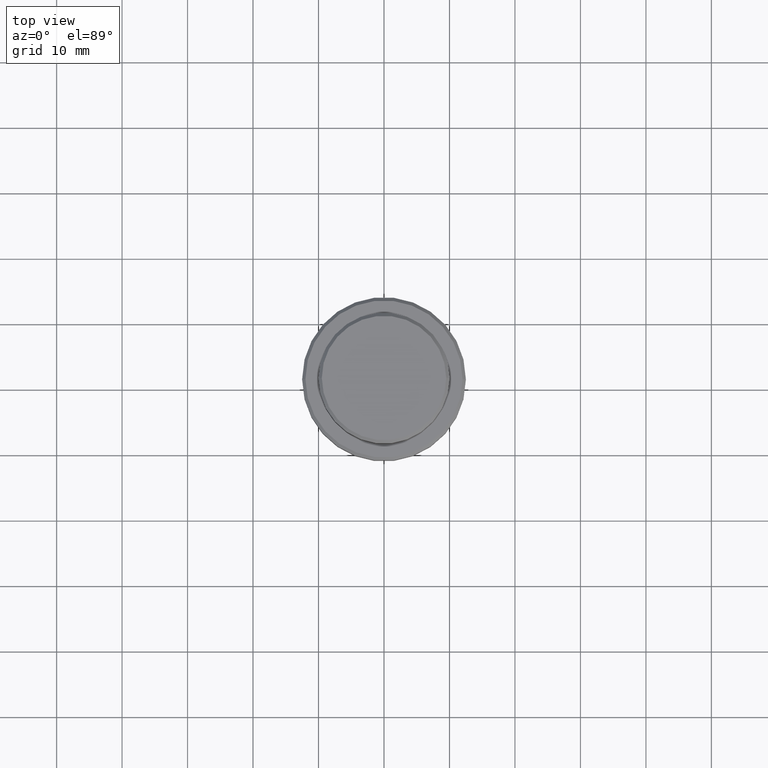
[diagram: clean part render]
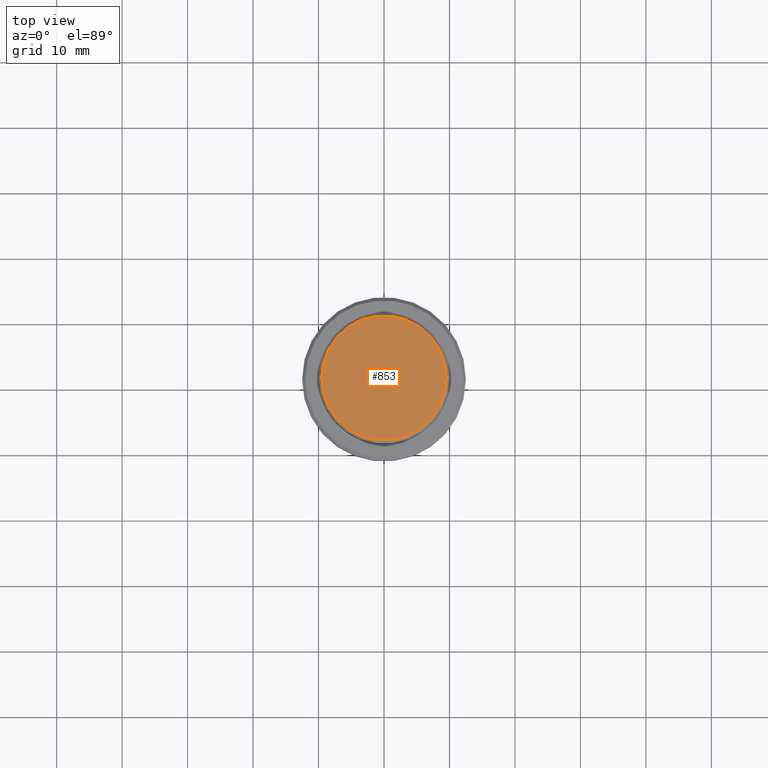
[diagram: same view with one face highlighted and labeled with its STEP entity id]
A machine part, top view. The second image highlights one B-rep face of the part: STEP entity #853.
In plain terms, the highlighted planar face has unit normal (0, -0, 1).
Its self-contained STEP definition (entity closure, byte-faithful):
#31 = VERTEX_POINT ( 'NONE', #1134 ) ;
#80 = DIRECTION ( 'NONE',  ( 0.000000000000000000, -0.000000000000000000, 1.000000000000000000 ) ) ;
#213 = EDGE_CURVE ( 'NONE', #31, #777, #801, .T. ) ;
#268 = DIRECTION ( 'NONE',  ( -0.000000000000000000, -0.000000000000000000, 1.000000000000000000 ) ) ;
#324 = CARTESIAN_POINT ( 'NONE',  ( 0.000000000000000000, 0.000000000000000000, 0.000000000000000000 ) ) ;
#327 = FACE_OUTER_BOUND ( 'NONE', #999, .T. ) ;
#351 = CARTESIAN_POINT ( 'NONE',  ( 0.000000000000000000, 0.000000000000000000, 0.000000000000000000 ) ) ;
#394 = AXIS2_PLACEMENT_3D ( 'NONE', #1382, #268, #1262 ) ;
#468 = ORIENTED_EDGE ( 'NONE', *, *, #213, .T. ) ;
#479 = AXIS2_PLACEMENT_3D ( 'NONE', #351, #1009, #792 ) ;
#515 = AXIS2_PLACEMENT_3D ( 'NONE', #324, #80, #1084 ) ;
#776 = CIRCLE ( 'NONE', #394, 9.499999999999980460 ) ;
#777 = VERTEX_POINT ( 'NONE', #1221 ) ;
#792 = DIRECTION ( 'NONE',  ( 1.000000000000000000, 0.000000000000000000, 0.000000000000000000 ) ) ;
#801 = CIRCLE ( 'NONE', #479, 9.499999999999980460 ) ;
#853 = ADVANCED_FACE ( 'NONE', ( #327 ), #1095, .T. ) ;
#905 = ORIENTED_EDGE ( 'NONE', *, *, #965, .T. ) ;
#965 = EDGE_CURVE ( 'NONE', #777, #31, #776, .T. ) ;
#999 = EDGE_LOOP ( 'NONE', ( #468, #905 ) ) ;
#1009 = DIRECTION ( 'NONE',  ( -0.000000000000000000, -0.000000000000000000, 1.000000000000000000 ) ) ;
#1084 = DIRECTION ( 'NONE',  ( 1.000000000000000000, 0.000000000000000000, 0.000000000000000000 ) ) ;
#1095 = PLANE ( 'NONE',  #515 ) ;
#1134 = CARTESIAN_POINT ( 'NONE',  ( -9.499999999999980460, 0.000000000000000000, 0.000000000000000000 ) ) ;
#1221 = CARTESIAN_POINT ( 'NONE',  ( 9.499999999999980460, 1.194030629168668089E-15, 0.000000000000000000 ) ) ;
#1262 = DIRECTION ( 'NONE',  ( 1.000000000000000000, 0.000000000000000000, 0.000000000000000000 ) ) ;
#1382 = CARTESIAN_POINT ( 'NONE',  ( 0.000000000000000000, 0.000000000000000000, 0.000000000000000000 ) ) ;